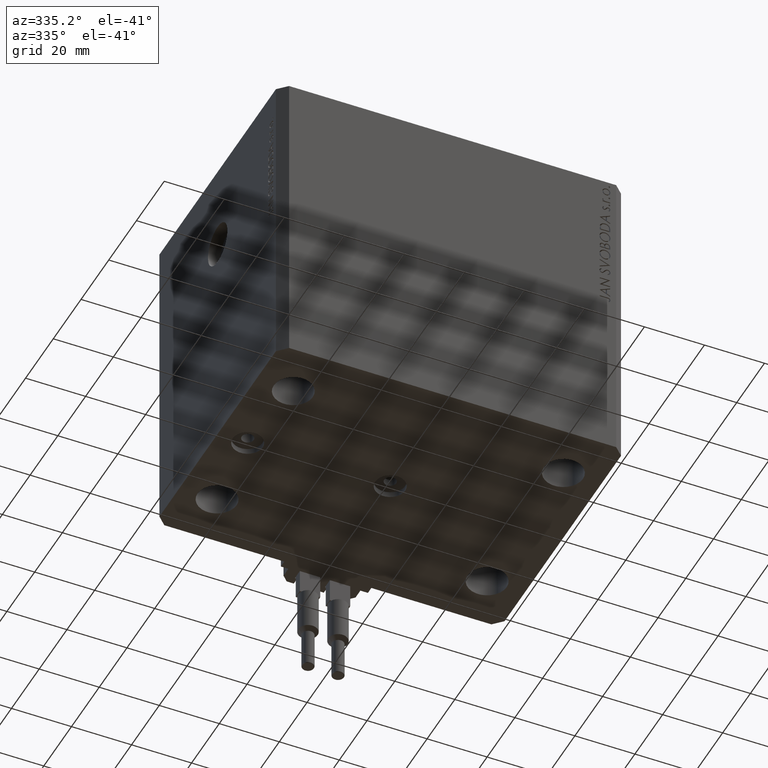
[diagram: clean part render]
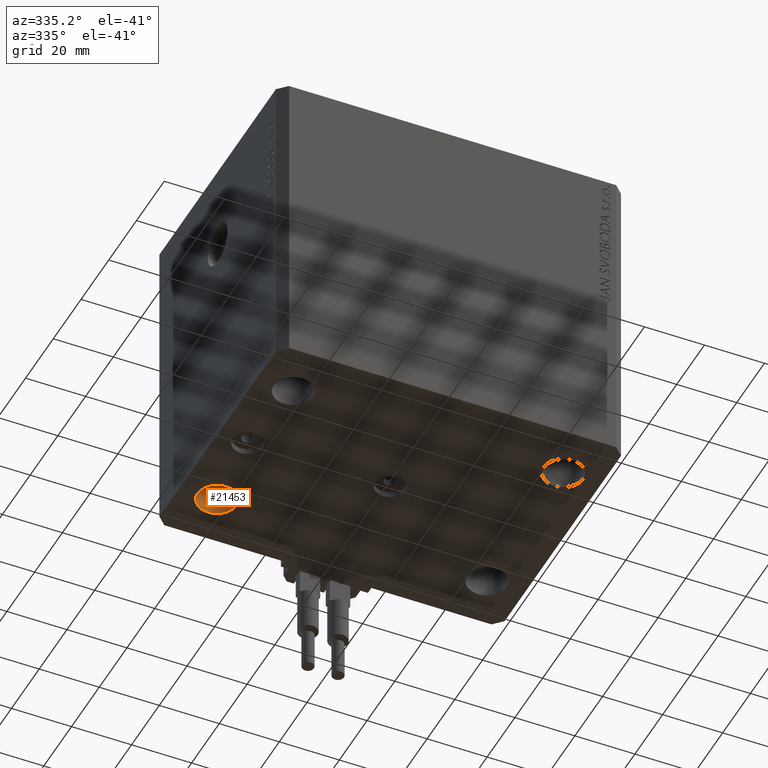
[diagram: same view with one face highlighted and labeled with its STEP entity id]
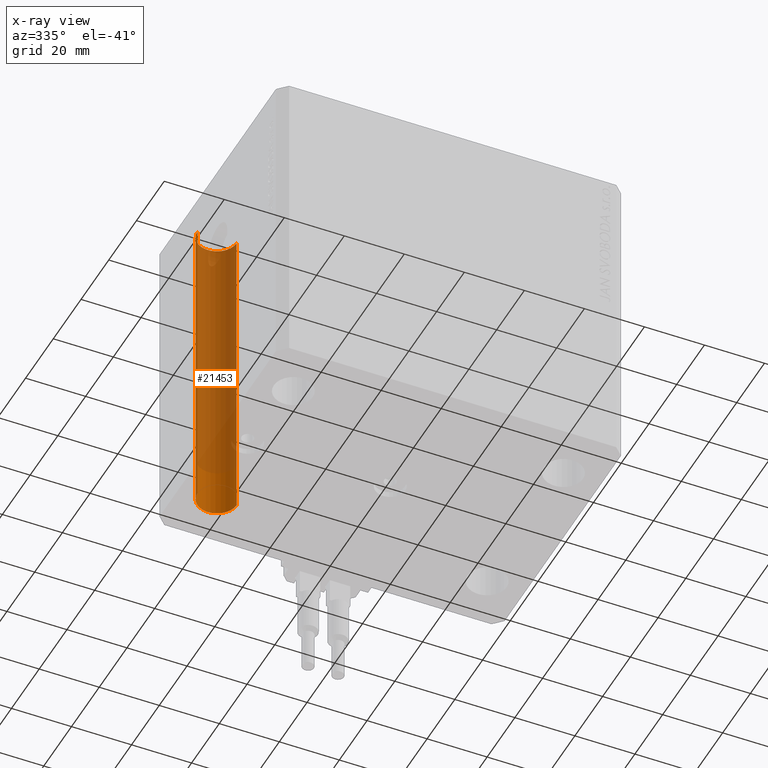
[diagram: x-ray of the same camera — body ghosted, the highlighted face saturated]
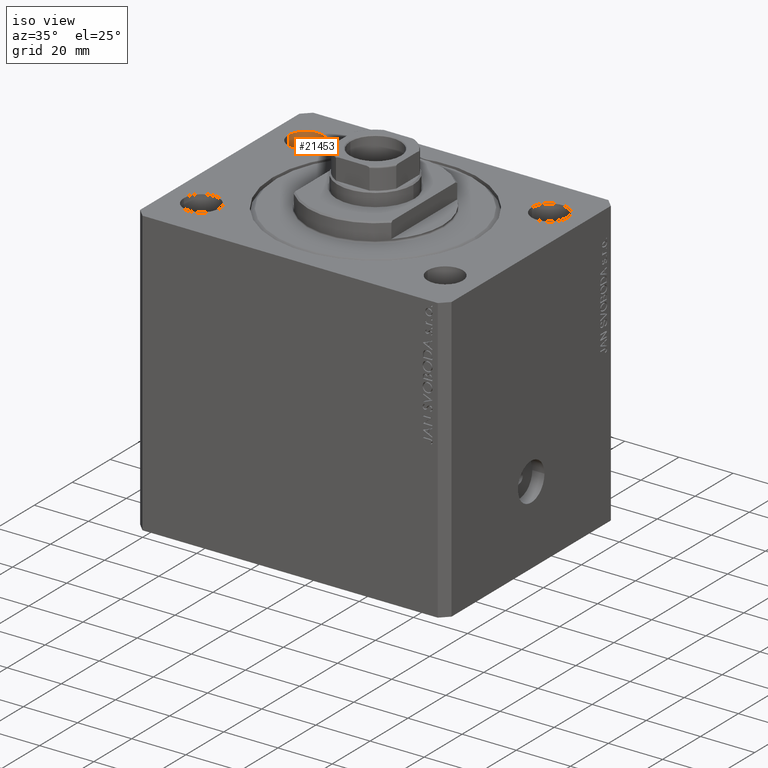
[diagram: same view with one face highlighted and labeled with its STEP entity id]
A machine part, auxiliary view. The second image highlights one B-rep face of the part: STEP entity #21453.
The next image is the same camera in x-ray: the body ghosted, the highlighted face saturated — about 81% of this face is hidden behind the body in this view.
A second angle (iso view) of the same face is appended — the face is thin or edge-on in the first view.
In plain terms, the highlighted cylindrical surface (edge-blend (fillet) strip) has radius 6.5 mm, axis along (0, 0, 1).
Its self-contained STEP definition (entity closure, byte-faithful):
#1002 = DIRECTION ( 'NONE',  ( 1.000000000000000000, 0.000000000000000000, 0.000000000000000000 ) ) ;
#1147 = LINE ( 'NONE', #8961, #14740 ) ;
#5937 = CARTESIAN_POINT ( 'NONE',  ( -51.50000000000000000, 27.49999999999999645, 0.000000000000000000 ) ) ;
#6337 = CARTESIAN_POINT ( 'NONE',  ( -51.50000000000000000, 27.49999999999999645, -123.3847763108502278 ) ) ;
#6818 = LINE ( 'NONE', #6337, #41461 ) ;
#7855 = AXIS2_PLACEMENT_3D ( 'NONE', #37173, #15236, #26683 ) ;
#7943 = ORIENTED_EDGE ( 'NONE', *, *, #22261, .T. ) ;
#8961 = CARTESIAN_POINT ( 'NONE',  ( -38.50000000000000000, 27.49999999999999645, -123.3847763108502278 ) ) ;
#9133 = VERTEX_POINT ( 'NONE', #23024 ) ;
#10122 = AXIS2_PLACEMENT_3D ( 'NONE', #19568, #18191, #44257 ) ;
#10332 = AXIS2_PLACEMENT_3D ( 'NONE', #23398, #27806, #1002 ) ;
#11297 = VERTEX_POINT ( 'NONE', #25911 ) ;
#13462 = ORIENTED_EDGE ( 'NONE', *, *, #23843, .T. ) ;
#14740 = VECTOR ( 'NONE', #16001, 1000.000000000000000 ) ;
#15236 = DIRECTION ( 'NONE',  ( -0.000000000000000000, -0.000000000000000000, -1.000000000000000000 ) ) ;
#16001 = DIRECTION ( 'NONE',  ( -0.000000000000000000, -0.000000000000000000, 1.000000000000000000 ) ) ;
#17410 = CIRCLE ( 'NONE', #7855, 6.499999999999999112 ) ;
#18191 = DIRECTION ( 'NONE',  ( -0.000000000000000000, -0.000000000000000000, 1.000000000000000000 ) ) ;
#18659 = ORIENTED_EDGE ( 'NONE', *, *, #18801, .F. ) ;
#18801 = EDGE_CURVE ( 'NONE', #35840, #19764, #6818, .T. ) ;
#18838 = CIRCLE ( 'NONE', #10332, 6.499999999999999112 ) ;
#19568 = CARTESIAN_POINT ( 'NONE',  ( -45.00000000000000000, 27.49999999999999645, -123.3847763108502278 ) ) ;
#19764 = VERTEX_POINT ( 'NONE', #5937 ) ;
#21453 = ADVANCED_FACE ( 'NONE', ( #26234 ), #41078, .F. ) ;
#22255 = CARTESIAN_POINT ( 'NONE',  ( -51.50000000000000000, 27.49999999999999645, -105.0000000000000000 ) ) ;
#22261 = EDGE_CURVE ( 'NONE', #11297, #9133, #1147, .T. ) ;
#23024 = CARTESIAN_POINT ( 'NONE',  ( -38.50000000000000000, 27.49999999999999645, 0.000000000000000000 ) ) ;
#23398 = CARTESIAN_POINT ( 'NONE',  ( -45.00000000000000000, 27.49999999999999645, 0.000000000000000000 ) ) ;
#23843 = EDGE_CURVE ( 'NONE', #9133, #19764, #18838, .T. ) ;
#25911 = CARTESIAN_POINT ( 'NONE',  ( -38.50000000000000000, 27.49999999999999645, -105.0000000000000000 ) ) ;
#26234 = FACE_OUTER_BOUND ( 'NONE', #35670, .T. ) ;
#26683 = DIRECTION ( 'NONE',  ( 1.000000000000000000, 0.000000000000000000, 0.000000000000000000 ) ) ;
#26814 = ORIENTED_EDGE ( 'NONE', *, *, #29425, .T. ) ;
#27806 = DIRECTION ( 'NONE',  ( 0.000000000000000000, 0.000000000000000000, 1.000000000000000000 ) ) ;
#29425 = EDGE_CURVE ( 'NONE', #35840, #11297, #17410, .T. ) ;
#35670 = EDGE_LOOP ( 'NONE', ( #18659, #26814, #7943, #13462 ) ) ;
#35840 = VERTEX_POINT ( 'NONE', #22255 ) ;
#37173 = CARTESIAN_POINT ( 'NONE',  ( -45.00000000000000000, 27.49999999999999645, -105.0000000000000000 ) ) ;
#41078 = CYLINDRICAL_SURFACE ( 'NONE', #10122, 6.499999999999999112 ) ;
#41461 = VECTOR ( 'NONE', #43813, 1000.000000000000000 ) ;
#43813 = DIRECTION ( 'NONE',  ( -0.000000000000000000, -0.000000000000000000, 1.000000000000000000 ) ) ;
#44257 = DIRECTION ( 'NONE',  ( 1.000000000000000000, 0.000000000000000000, 0.000000000000000000 ) ) ;